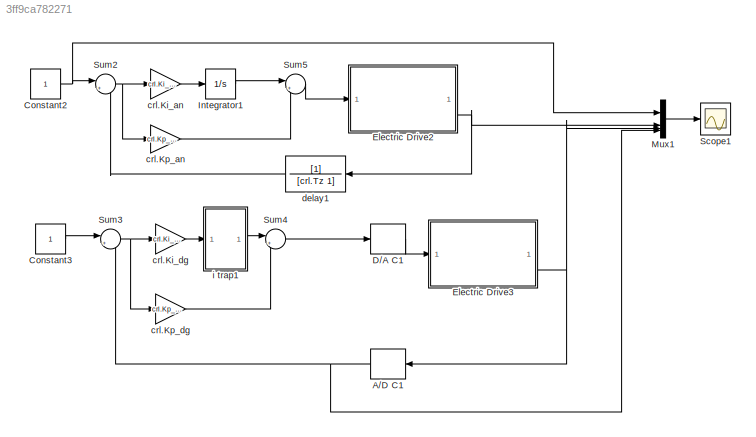
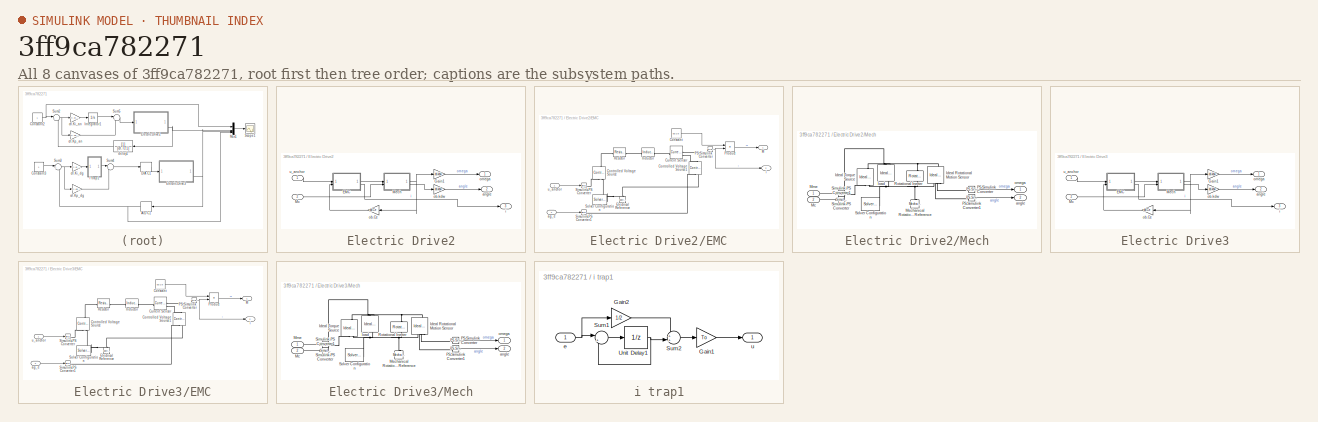
[diagram: thumbnail index - all 8 canvases of the model, root first then tree order]
MODEL slx_3ff9ca782271
KIND model
CONFIG AbsTol = auto
CONFIG EnableMultiTasking = off
CONFIG FixedStep = To/100
CONFIG MaxStep = auto
CONFIG MinStep = auto
CONFIG RelTol = 1e-3
CONFIG SampleTimeConstraint = Unconstrained
CONFIG SolverName = ode3
CONFIG StartTime = 0.0
CONFIG StopTime = Tmdl
BLOCK [ZeroOrderHold] A//D C1
  NameLocation = top
  SampleTime = To
BLOCK [Constant] Constant2
BLOCK [Constant] Constant3
BLOCK [ZeroOrderHold] D//A C1
  SampleTime = To
BLOCK [SubSystem] Electric Drive2
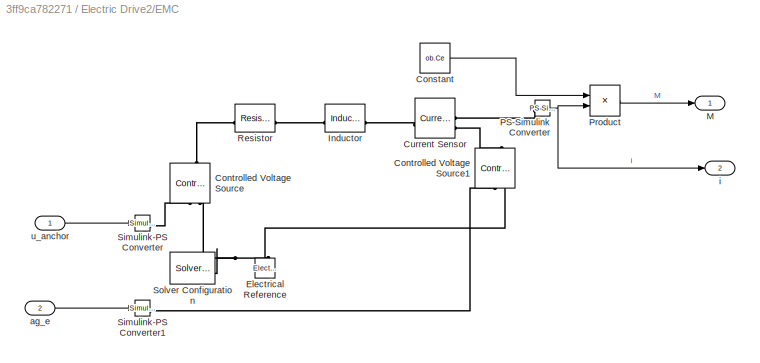
BLOCK [SubSystem] Electric Drive2/EMC
BLOCK [Constant] Electric Drive2/EMC/Constant
  Value = ob.Ce
BLOCK [Reference] Electric Drive2/EMC/Controlled Voltage Source  REF=fl_lib/Electrical/Electrical Sources/Controlled Voltage
Source
  NameLocation = right
  SourceBlock = fl_lib/Electrical/Electrical Sources/Controlled Voltage\nSource
  SourceType = Controlled Voltage\nSource
BLOCK [Reference] Electric Drive2/EMC/Controlled Voltage Source1  REF=fl_lib/Electrical/Electrical Sources/Controlled Voltage
Source
  NameLocation = right
  SourceBlock = fl_lib/Electrical/Electrical Sources/Controlled Voltage\nSource
  SourceType = Controlled Voltage\nSource
BLOCK [Reference] Electric Drive2/EMC/Current Sensor  REF=fl_lib/Electrical/Electrical Sensors/Current Sensor
  SourceBlock = fl_lib/Electrical/Electrical Sensors/Current Sensor
  SourceType = Current Sensor
BLOCK [Reference] Electric Drive2/EMC/Electrical Reference  REF=fl_lib/Electrical/Electrical Elements/Electrical Reference
  NameLocation = right
  SourceBlock = fl_lib/Electrical/Electrical Elements/Electrical Reference
  SourceType = Electrical Reference
BLOCK [Reference] Electric Drive2/EMC/Inductor  REF=fl_lib/Electrical/Electrical Elements/Inductor
  SourceBlock = fl_lib/Electrical/Electrical Elements/Inductor
  SourceType = Inductor
BLOCK [Outport] Electric Drive2/EMC/M
BLOCK [Reference] Electric Drive2/EMC/PS-Simulink Converter  REF=nesl_utility/PS-Simulink
Converter
  SourceBlock = nesl_utility/PS-Simulink\nConverter
  SourceType = PS-Simulink\nConverter
BLOCK [Product] Electric Drive2/EMC/Product
BLOCK [Reference] Electric Drive2/EMC/Resistor  REF=fl_lib/Electrical/Electrical Elements/Resistor
  SourceBlock = fl_lib/Electrical/Electrical Elements/Resistor
  SourceType = Resistor
BLOCK [Reference] Electric Drive2/EMC/Simulink-PS Converter  REF=nesl_utility/Simulink-PS
Converter
  SourceBlock = nesl_utility/Simulink-PS\nConverter
  SourceType = Simulink-PS\nConverter
BLOCK [Reference] Electric Drive2/EMC/Simulink-PS Converter1  REF=nesl_utility/Simulink-PS
Converter
  SourceBlock = nesl_utility/Simulink-PS\nConverter
  SourceType = Simulink-PS\nConverter
BLOCK [Reference] Electric Drive2/EMC/Solver Configuration  REF=nesl_utility/Solver
Configuration
  SourceBlock = nesl_utility/Solver\nConfiguration
  SourceType = Solver\nConfiguration
BLOCK [Inport] Electric Drive2/EMC/ag_e
  Port = 2
BLOCK [Outport] Electric Drive2/EMC/i
  Port = 2
BLOCK [Inport] Electric Drive2/EMC/u_anchor
BLOCK [Gain] Electric Drive2/Gain1
  Gain = ob.kdw
BLOCK [Inport] Electric Drive2/Mc
  Port = 2
BLOCK [SubSystem] Electric Drive2/Mech
BLOCK [Reference] Electric Drive2/Mech/Ideal Rotational Motion Sensor  REF=fl_lib/Mechanical/Mechanical Sensors/Ideal Rotational
Motion Sensor
  NameLocation = left
  SourceBlock = fl_lib/Mechanical/Mechanical Sensors/Ideal Rotational\nMotion Sensor
  SourceType = Ideal Rotational\nMotion Sensor
BLOCK [Reference] Electric Drive2/Mech/Ideal Torque Source  REF=fl_lib/Mechanical/Mechanical Sources/Ideal Torque Source
  NameLocation = right
  SourceBlock = fl_lib/Mechanical/Mechanical Sources/Ideal Torque Source
  SourceType = Ideal Torque Source
BLOCK [Inport] Electric Drive2/Mech/Mc
  Port = 2
BLOCK [Reference] Electric Drive2/Mech/Mechanical Rotational Reference  REF=fl_lib/Mechanical/Rotational Elements/Mechanical
Rotational Reference
  NameLocation = right
  SourceBlock = fl_lib/Mechanical/Rotational Elements/Mechanical\nRotational Reference
  SourceType = Mechanical\nRotational Reference
BLOCK [Inport] Electric Drive2/Mech/Mme
BLOCK [Reference] Electric Drive2/Mech/PS-Simulink Converter  REF=nesl_utility/PS-Simulink
Converter
  SourceBlock = nesl_utility/PS-Simulink\nConverter
  SourceType = PS-Simulink\nConverter
BLOCK [Reference] Electric Drive2/Mech/PS-Simulink Converter1  REF=nesl_utility/PS-Simulink
Converter
  SourceBlock = nesl_utility/PS-Simulink\nConverter
  SourceType = PS-Simulink\nConverter
BLOCK [Reference] Electric Drive2/Mech/Rotational Inerter  REF=fl_lib/Mechanical/Rotational Elements/Rotational Inerter
  NameLocation = left
  SourceBlock = fl_lib/Mechanical/Rotational Elements/Rotational Inerter
  SourceType = Rotational Inerter
BLOCK [Reference] Electric Drive2/Mech/Simulink-PS Converter  REF=nesl_utility/Simulink-PS
Converter
  SourceBlock = nesl_utility/Simulink-PS\nConverter
  SourceType = Simulink-PS\nConverter
BLOCK [Reference] Electric Drive2/Mech/Simulink-PS Converter1  REF=nesl_utility/Simulink-PS
Converter
  SourceBlock = nesl_utility/Simulink-PS\nConverter
  SourceType = Simulink-PS\nConverter
BLOCK [Reference] Electric Drive2/Mech/Solver Configuration  REF=nesl_utility/Solver
Configuration
  SourceBlock = nesl_utility/Solver\nConfiguration
  SourceType = Solver\nConfiguration
BLOCK [Outport] Electric Drive2/Mech/angle
  Port = 2
BLOCK [Reference] Electric Drive2/Mech/load  REF=fl_lib/Mechanical/Mechanical Sources/Ideal Torque Source
  SourceBlock = fl_lib/Mechanical/Mechanical Sources/Ideal Torque Source
  SourceType = Ideal Torque Source
BLOCK [Outport] Electric Drive2/Mech/omega
BLOCK [Outport] Electric Drive2/angle
  Port = 2
BLOCK [Outport] Electric Drive2/i
  Port = 3
BLOCK [Gain] Electric Drive2/ob.Ce
  Gain = ob.Ce
BLOCK [Gain] Electric Drive2/ob.kdw
  Gain = ob.kdw
  NameLocation = top
BLOCK [Outport] Electric Drive2/omega
BLOCK [Inport] Electric Drive2/u_anchor
BLOCK [SubSystem] Electric Drive3
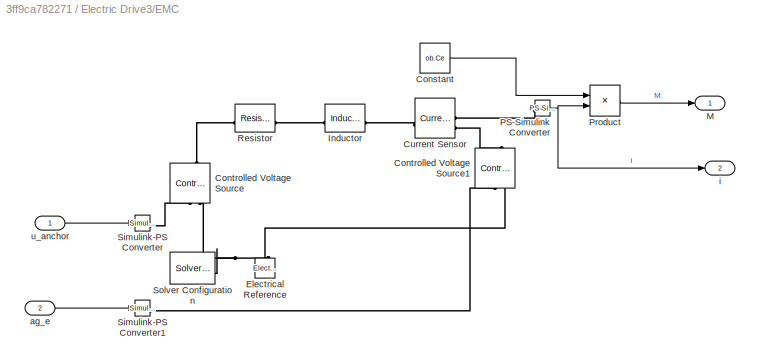
BLOCK [SubSystem] Electric Drive3/EMC
BLOCK [Constant] Electric Drive3/EMC/Constant
  Value = ob.Ce
BLOCK [Reference] Electric Drive3/EMC/Controlled Voltage Source  REF=fl_lib/Electrical/Electrical Sources/Controlled Voltage
Source
  NameLocation = right
  SourceBlock = fl_lib/Electrical/Electrical Sources/Controlled Voltage\nSource
  SourceType = Controlled Voltage\nSource
BLOCK [Reference] Electric Drive3/EMC/Controlled Voltage Source1  REF=fl_lib/Electrical/Electrical Sources/Controlled Voltage
Source
  NameLocation = right
  SourceBlock = fl_lib/Electrical/Electrical Sources/Controlled Voltage\nSource
  SourceType = Controlled Voltage\nSource
BLOCK [Reference] Electric Drive3/EMC/Current Sensor  REF=fl_lib/Electrical/Electrical Sensors/Current Sensor
  SourceBlock = fl_lib/Electrical/Electrical Sensors/Current Sensor
  SourceType = Current Sensor
BLOCK [Reference] Electric Drive3/EMC/Electrical Reference  REF=fl_lib/Electrical/Electrical Elements/Electrical Reference
  NameLocation = right
  SourceBlock = fl_lib/Electrical/Electrical Elements/Electrical Reference
  SourceType = Electrical Reference
BLOCK [Reference] Electric Drive3/EMC/Inductor  REF=fl_lib/Electrical/Electrical Elements/Inductor
  SourceBlock = fl_lib/Electrical/Electrical Elements/Inductor
  SourceType = Inductor
BLOCK [Outport] Electric Drive3/EMC/M
BLOCK [Reference] Electric Drive3/EMC/PS-Simulink Converter  REF=nesl_utility/PS-Simulink
Converter
  SourceBlock = nesl_utility/PS-Simulink\nConverter
  SourceType = PS-Simulink\nConverter
BLOCK [Product] Electric Drive3/EMC/Product
BLOCK [Reference] Electric Drive3/EMC/Resistor  REF=fl_lib/Electrical/Electrical Elements/Resistor
  SourceBlock = fl_lib/Electrical/Electrical Elements/Resistor
  SourceType = Resistor
BLOCK [Reference] Electric Drive3/EMC/Simulink-PS Converter  REF=nesl_utility/Simulink-PS
Converter
  SourceBlock = nesl_utility/Simulink-PS\nConverter
  SourceType = Simulink-PS\nConverter
BLOCK [Reference] Electric Drive3/EMC/Simulink-PS Converter1  REF=nesl_utility/Simulink-PS
Converter
  SourceBlock = nesl_utility/Simulink-PS\nConverter
  SourceType = Simulink-PS\nConverter
BLOCK [Reference] Electric Drive3/EMC/Solver Configuration  REF=nesl_utility/Solver
Configuration
  SourceBlock = nesl_utility/Solver\nConfiguration
  SourceType = Solver\nConfiguration
BLOCK [Inport] Electric Drive3/EMC/ag_e
  Port = 2
BLOCK [Outport] Electric Drive3/EMC/i
  Port = 2
BLOCK [Inport] Electric Drive3/EMC/u_anchor
BLOCK [Gain] Electric Drive3/Gain1
  Gain = ob.kdw
BLOCK [Inport] Electric Drive3/Mc
  Port = 2
BLOCK [SubSystem] Electric Drive3/Mech
BLOCK [Reference] Electric Drive3/Mech/Ideal Rotational Motion Sensor  REF=fl_lib/Mechanical/Mechanical Sensors/Ideal Rotational
Motion Sensor
  NameLocation = left
  SourceBlock = fl_lib/Mechanical/Mechanical Sensors/Ideal Rotational\nMotion Sensor
  SourceType = Ideal Rotational\nMotion Sensor
BLOCK [Reference] Electric Drive3/Mech/Ideal Torque Source  REF=fl_lib/Mechanical/Mechanical Sources/Ideal Torque Source
  NameLocation = right
  SourceBlock = fl_lib/Mechanical/Mechanical Sources/Ideal Torque Source
  SourceType = Ideal Torque Source
BLOCK [Inport] Electric Drive3/Mech/Mc
  Port = 2
BLOCK [Reference] Electric Drive3/Mech/Mechanical Rotational Reference  REF=fl_lib/Mechanical/Rotational Elements/Mechanical
Rotational Reference
  NameLocation = right
  SourceBlock = fl_lib/Mechanical/Rotational Elements/Mechanical\nRotational Reference
  SourceType = Mechanical\nRotational Reference
BLOCK [Inport] Electric Drive3/Mech/Mme
BLOCK [Reference] Electric Drive3/Mech/PS-Simulink Converter  REF=nesl_utility/PS-Simulink
Converter
  SourceBlock = nesl_utility/PS-Simulink\nConverter
  SourceType = PS-Simulink\nConverter
BLOCK [Reference] Electric Drive3/Mech/PS-Simulink Converter1  REF=nesl_utility/PS-Simulink
Converter
  SourceBlock = nesl_utility/PS-Simulink\nConverter
  SourceType = PS-Simulink\nConverter
BLOCK [Reference] Electric Drive3/Mech/Rotational Inerter  REF=fl_lib/Mechanical/Rotational Elements/Rotational Inerter
  NameLocation = left
  SourceBlock = fl_lib/Mechanical/Rotational Elements/Rotational Inerter
  SourceType = Rotational Inerter
BLOCK [Reference] Electric Drive3/Mech/Simulink-PS Converter  REF=nesl_utility/Simulink-PS
Converter
  SourceBlock = nesl_utility/Simulink-PS\nConverter
  SourceType = Simulink-PS\nConverter
BLOCK [Reference] Electric Drive3/Mech/Simulink-PS Converter1  REF=nesl_utility/Simulink-PS
Converter
  SourceBlock = nesl_utility/Simulink-PS\nConverter
  SourceType = Simulink-PS\nConverter
BLOCK [Reference] Electric Drive3/Mech/Solver Configuration  REF=nesl_utility/Solver
Configuration
  SourceBlock = nesl_utility/Solver\nConfiguration
  SourceType = Solver\nConfiguration
BLOCK [Outport] Electric Drive3/Mech/angle
  Port = 2
BLOCK [Reference] Electric Drive3/Mech/load  REF=fl_lib/Mechanical/Mechanical Sources/Ideal Torque Source
  SourceBlock = fl_lib/Mechanical/Mechanical Sources/Ideal Torque Source
  SourceType = Ideal Torque Source
BLOCK [Outport] Electric Drive3/Mech/omega
BLOCK [Outport] Electric Drive3/angle
  Port = 2
BLOCK [Outport] Electric Drive3/i
  Port = 3
BLOCK [Gain] Electric Drive3/ob.Ce
  Gain = ob.Ce
BLOCK [Gain] Electric Drive3/ob.kdw
  Gain = ob.kdw
  NameLocation = top
BLOCK [Outport] Electric Drive3/omega
BLOCK [Inport] Electric Drive3/u_anchor
BLOCK [Integrator] Integrator1
BLOCK [Mux] Mux1
  DisplayOption = bar
BLOCK [Scope] Scope1
  Floating = off
  NumInputPorts = 1
  ScopeSpecificationString = Simulink.scopes.TimeScopeBlockCfg('CurrentConfiguration', extmgr.ConfigurationSet(extmgr.Configuration('Core','General UI',true),extmgr.Configuration('Core','Source UI',true),extmgr.Configuration('Sources','WiredSimulink',true,'DataLogging',true,'DataLoggingVariableName','ia','DataLoggingSaveFormat','Array'),extmgr.Configuration('Visuals','Time Domain',true,'SerializedDisplays',{struct('MinYLimRea...<+1493ch>
BLOCK [Sum] Sum2
  Inputs = |+-
BLOCK [Sum] Sum3
  Inputs = |+-
BLOCK [Sum] Sum4
  Inputs = |++
BLOCK [Sum] Sum5
  Inputs = |++
BLOCK [Gain] crl.Ki_an
  Gain = crl.Ki_an
BLOCK [Gain] crl.Ki_dg
  Gain = crl.Ki_dg
BLOCK [Gain] crl.Kp_an
  Gain = crl.Kp_an
BLOCK [Gain] crl.Kp_dg
  Gain = crl.Kp_dg
BLOCK [TransferFcn] delay1
  Denominator = [crl.Tz 1]
BLOCK [SubSystem] i trap1
BLOCK [Gain] i trap1/Gain1
  Gain = To
BLOCK [Gain] i trap1/Gain2
  Gain = 1/2
BLOCK [Sum] i trap1/Sum1
  Inputs = |++
BLOCK [Sum] i trap1/Sum2
  Inputs = ++|
BLOCK [UnitDelay] i trap1/Unit Delay1
  HasFrameUpgradeWarning = on
  SampleTime = To
BLOCK [Inport] i trap1/e
BLOCK [Outport] i trap1/u
NET A//D C1:1 -> Mux1:4, Sum3:2
NET Constant2:1 -> Mux1:1, Sum2:1
LINE Constant3:1 -> Sum3:1
LINE D//A C1:1 -> Electric Drive3:1
LINE Electric Drive2/EMC/Constant:1 -> Electric Drive2/EMC/Product:1
NET Electric Drive2/EMC/PS-Simulink Converter:1 -> Electric Drive2/EMC/Product:2, Electric Drive2/EMC/i:1
LINE Electric Drive2/EMC/Product:1 -> Electric Drive2/EMC/M:1
LINE Electric Drive2/EMC/ag_e:1 -> Electric Drive2/EMC/Simulink-PS Converter1:1
LINE Electric Drive2/EMC/u_anchor:1 -> Electric Drive2/EMC/Simulink-PS Converter:1
LINE Electric Drive2/EMC:1 -> Electric Drive2/Mech:1
LINE Electric Drive2/EMC:2 -> Electric Drive2/i:1
LINE Electric Drive2/Gain1:1 -> Electric Drive2/omega:1
LINE Electric Drive2/Mc:1 -> Electric Drive2/Mech:2
LINE Electric Drive2/Mech/Mc:1 -> Electric Drive2/Mech/Simulink-PS Converter1:1
LINE Electric Drive2/Mech/Mme:1 -> Electric Drive2/Mech/Simulink-PS Converter:1
LINE Electric Drive2/Mech/PS-Simulink Converter1:1 -> Electric Drive2/Mech/angle:1
LINE Electric Drive2/Mech/PS-Simulink Converter:1 -> Electric Drive2/Mech/omega:1
NET Electric Drive2/Mech:1 -> Electric Drive2/Gain1:1, Electric Drive2/ob.Ce:1
LINE Electric Drive2/Mech:2 -> Electric Drive2/ob.kdw:1
LINE Electric Drive2/ob.Ce:1 -> Electric Drive2/EMC:2
LINE Electric Drive2/ob.kdw:1 -> Electric Drive2/angle:1
LINE Electric Drive2/u_anchor:1 -> Electric Drive2/EMC:1
NET Electric Drive2:3 -> Mux1:2, delay1:1
LINE Electric Drive3/EMC/Constant:1 -> Electric Drive3/EMC/Product:1
NET Electric Drive3/EMC/PS-Simulink Converter:1 -> Electric Drive3/EMC/Product:2, Electric Drive3/EMC/i:1
LINE Electric Drive3/EMC/Product:1 -> Electric Drive3/EMC/M:1
LINE Electric Drive3/EMC/ag_e:1 -> Electric Drive3/EMC/Simulink-PS Converter1:1
LINE Electric Drive3/EMC/u_anchor:1 -> Electric Drive3/EMC/Simulink-PS Converter:1
LINE Electric Drive3/EMC:1 -> Electric Drive3/Mech:1
LINE Electric Drive3/EMC:2 -> Electric Drive3/i:1
LINE Electric Drive3/Gain1:1 -> Electric Drive3/omega:1
LINE Electric Drive3/Mc:1 -> Electric Drive3/Mech:2
LINE Electric Drive3/Mech/Mc:1 -> Electric Drive3/Mech/Simulink-PS Converter1:1
LINE Electric Drive3/Mech/Mme:1 -> Electric Drive3/Mech/Simulink-PS Converter:1
LINE Electric Drive3/Mech/PS-Simulink Converter1:1 -> Electric Drive3/Mech/angle:1
LINE Electric Drive3/Mech/PS-Simulink Converter:1 -> Electric Drive3/Mech/omega:1
NET Electric Drive3/Mech:1 -> Electric Drive3/Gain1:1, Electric Drive3/ob.Ce:1
LINE Electric Drive3/Mech:2 -> Electric Drive3/ob.kdw:1
LINE Electric Drive3/ob.Ce:1 -> Electric Drive3/EMC:2
LINE Electric Drive3/ob.kdw:1 -> Electric Drive3/angle:1
LINE Electric Drive3/u_anchor:1 -> Electric Drive3/EMC:1
NET Electric Drive3:3 -> A//D C1:1, Mux1:3
LINE Integrator1:1 -> Sum5:1
LINE Mux1:1 -> Scope1:1
NET Sum2:1 -> crl.Ki_an:1, crl.Kp_an:1
NET Sum3:1 -> crl.Ki_dg:1, crl.Kp_dg:1
LINE Sum4:1 -> D//A C1:1
LINE Sum5:1 -> Electric Drive2:1
LINE crl.Ki_an:1 -> Integrator1:1
LINE crl.Ki_dg:1 -> i trap1:1
LINE crl.Kp_an:1 -> Sum5:2
LINE crl.Kp_dg:1 -> Sum4:2
LINE delay1:1 -> Sum2:2
LINE i trap1/Gain1:1 -> i trap1/u:1
LINE i trap1/Gain2:1 -> i trap1/Sum2:1
LINE i trap1/Sum1:1 -> i trap1/Unit Delay1:1
LINE i trap1/Sum2:1 -> i trap1/Gain1:1
NET i trap1/Unit Delay1:1 -> i trap1/Sum1:2, i trap1/Sum2:2
NET i trap1/e:1 -> i trap1/Gain2:1, i trap1/Sum1:1
LINE i trap1:1 -> Sum4:1
PLINE Electric Drive2/EMC/Controlled Voltage Source1:LConn1 -- Electric Drive2/EMC/Current Sensor:RConn2
PLINE Electric Drive2/EMC/Controlled Voltage Source1:RConn1 -- Electric Drive2/EMC/Simulink-PS Converter1:RConn1
PNET net1: Electric Drive2/EMC/Controlled Voltage Source1:RConn2 -- Electric Drive2/EMC/Controlled Voltage Source:RConn2 -- Electric Drive2/EMC/Electrical Reference:LConn1 -- Electric Drive2/EMC/Solver Configuration:RConn1
PLINE Electric Drive2/EMC/Controlled Voltage Source:LConn1 -- Electric Drive2/EMC/Resistor:LConn1
PLINE Electric Drive2/EMC/Controlled Voltage Source:RConn1 -- Electric Drive2/EMC/Simulink-PS Converter:RConn1
PLINE Electric Drive2/EMC/Current Sensor:LConn1 -- Electric Drive2/EMC/Inductor:RConn1
PLINE Electric Drive2/EMC/Current Sensor:RConn1 -- Electric Drive2/EMC/PS-Simulink Converter:LConn1
PLINE Electric Drive2/EMC/Inductor:LConn1 -- Electric Drive2/EMC/Resistor:RConn1
PNET net2: Electric Drive2/Mech/Ideal Rotational Motion Sensor:LConn1 -- Electric Drive2/Mech/Ideal Torque Source:LConn1 -- Electric Drive2/Mech/Rotational Inerter:LConn1 -- Electric Drive2/Mech/load:RConn2
PNET net3: Electric Drive2/Mech/Ideal Rotational Motion Sensor:RConn1 -- Electric Drive2/Mech/Ideal Torque Source:RConn2 -- Electric Drive2/Mech/Mechanical Rotational Reference:LConn1 -- Electric Drive2/Mech/Rotational Inerter:RConn1 -- Electric Drive2/Mech/Solver Configuration:RConn1 -- Electric Drive2/Mech/load:LConn1
PLINE Electric Drive2/Mech/Ideal Rotational Motion Sensor:RConn2 -- Electric Drive2/Mech/PS-Simulink Converter:LConn1
PLINE Electric Drive2/Mech/Ideal Rotational Motion Sensor:RConn3 -- Electric Drive2/Mech/PS-Simulink Converter1:LConn1
PLINE Electric Drive2/Mech/Ideal Torque Source:RConn1 -- Electric Drive2/Mech/Simulink-PS Converter:RConn1
PLINE Electric Drive2/Mech/Simulink-PS Converter1:RConn1 -- Electric Drive2/Mech/load:RConn1
PLINE Electric Drive3/EMC/Controlled Voltage Source1:LConn1 -- Electric Drive3/EMC/Current Sensor:RConn2
PLINE Electric Drive3/EMC/Controlled Voltage Source1:RConn1 -- Electric Drive3/EMC/Simulink-PS Converter1:RConn1
PNET net4: Electric Drive3/EMC/Controlled Voltage Source1:RConn2 -- Electric Drive3/EMC/Controlled Voltage Source:RConn2 -- Electric Drive3/EMC/Electrical Reference:LConn1 -- Electric Drive3/EMC/Solver Configuration:RConn1
PLINE Electric Drive3/EMC/Controlled Voltage Source:LConn1 -- Electric Drive3/EMC/Resistor:LConn1
PLINE Electric Drive3/EMC/Controlled Voltage Source:RConn1 -- Electric Drive3/EMC/Simulink-PS Converter:RConn1
PLINE Electric Drive3/EMC/Current Sensor:LConn1 -- Electric Drive3/EMC/Inductor:RConn1
PLINE Electric Drive3/EMC/Current Sensor:RConn1 -- Electric Drive3/EMC/PS-Simulink Converter:LConn1
PLINE Electric Drive3/EMC/Inductor:LConn1 -- Electric Drive3/EMC/Resistor:RConn1
PNET net5: Electric Drive3/Mech/Ideal Rotational Motion Sensor:LConn1 -- Electric Drive3/Mech/Ideal Torque Source:LConn1 -- Electric Drive3/Mech/Rotational Inerter:LConn1 -- Electric Drive3/Mech/load:RConn2
PNET net6: Electric Drive3/Mech/Ideal Rotational Motion Sensor:RConn1 -- Electric Drive3/Mech/Ideal Torque Source:RConn2 -- Electric Drive3/Mech/Mechanical Rotational Reference:LConn1 -- Electric Drive3/Mech/Rotational Inerter:RConn1 -- Electric Drive3/Mech/Solver Configuration:RConn1 -- Electric Drive3/Mech/load:LConn1
PLINE Electric Drive3/Mech/Ideal Rotational Motion Sensor:RConn2 -- Electric Drive3/Mech/PS-Simulink Converter:LConn1
PLINE Electric Drive3/Mech/Ideal Rotational Motion Sensor:RConn3 -- Electric Drive3/Mech/PS-Simulink Converter1:LConn1
PLINE Electric Drive3/Mech/Ideal Torque Source:RConn1 -- Electric Drive3/Mech/Simulink-PS Converter:RConn1
PLINE Electric Drive3/Mech/Simulink-PS Converter1:RConn1 -- Electric Drive3/Mech/load:RConn1
note: NET lines group one-source signal fan-out (src -> all destinations, sorted); 1:1 wires keep LINE; PNET lines group multi-terminal physical nets as a canonical sorted terminal list (undirected conserving connections); 2-terminal nets keep the pairwise PLINE form
